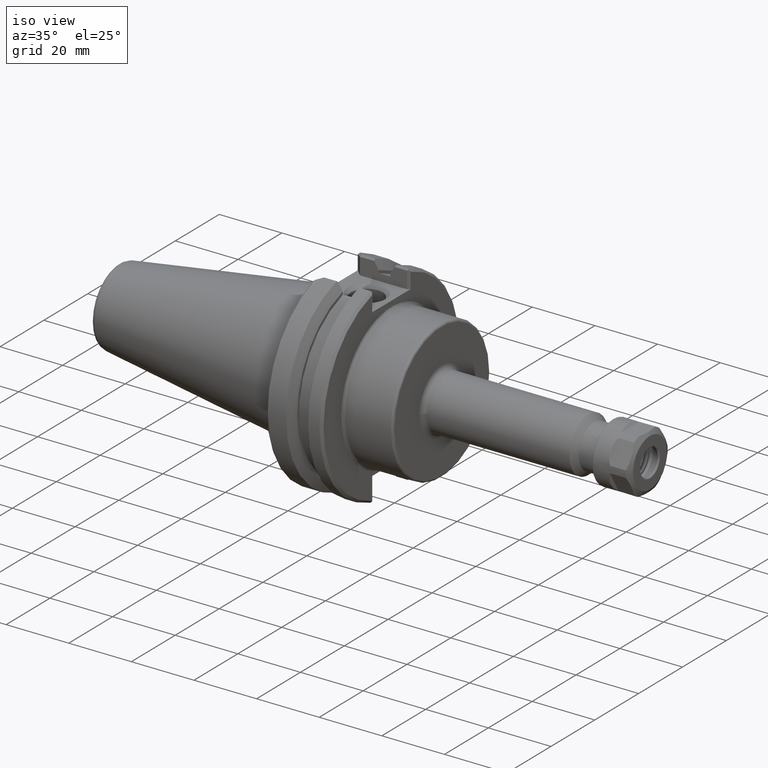
[diagram: clean part render]
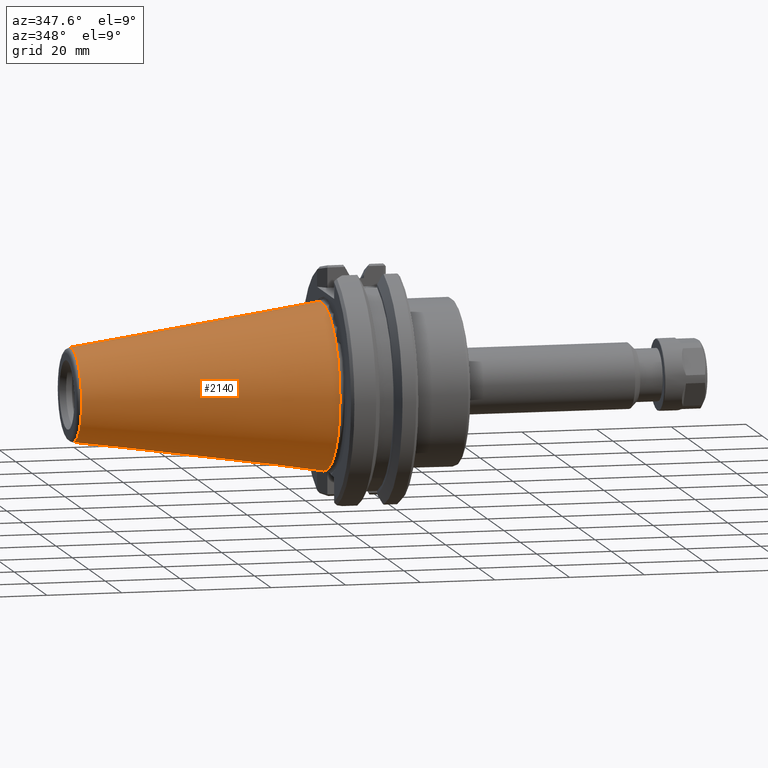
[diagram: tour spotlight — one face highlighted and labeled with its STEP entity id]
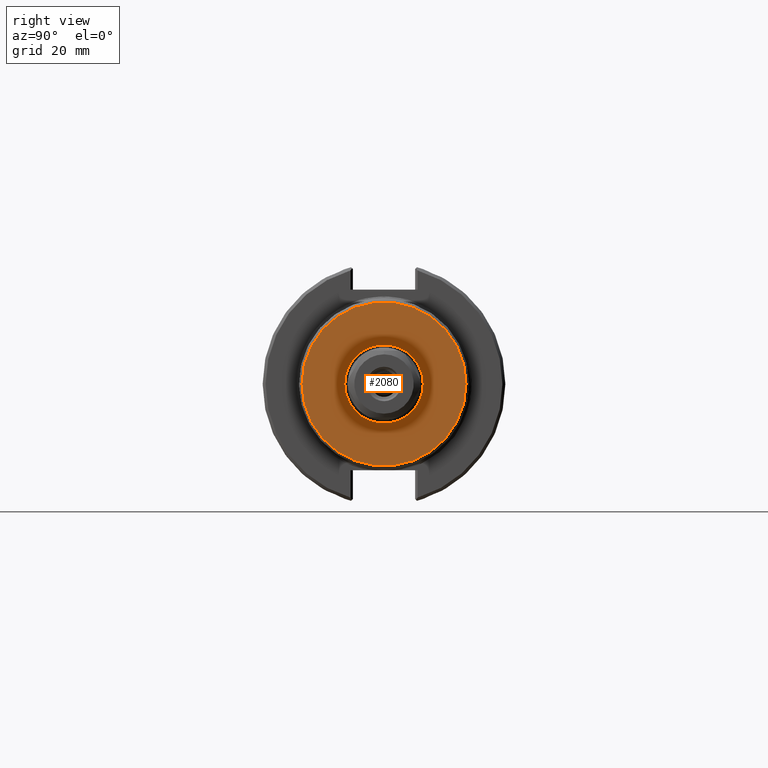
[diagram: tour spotlight — one face highlighted and labeled with its STEP entity id]
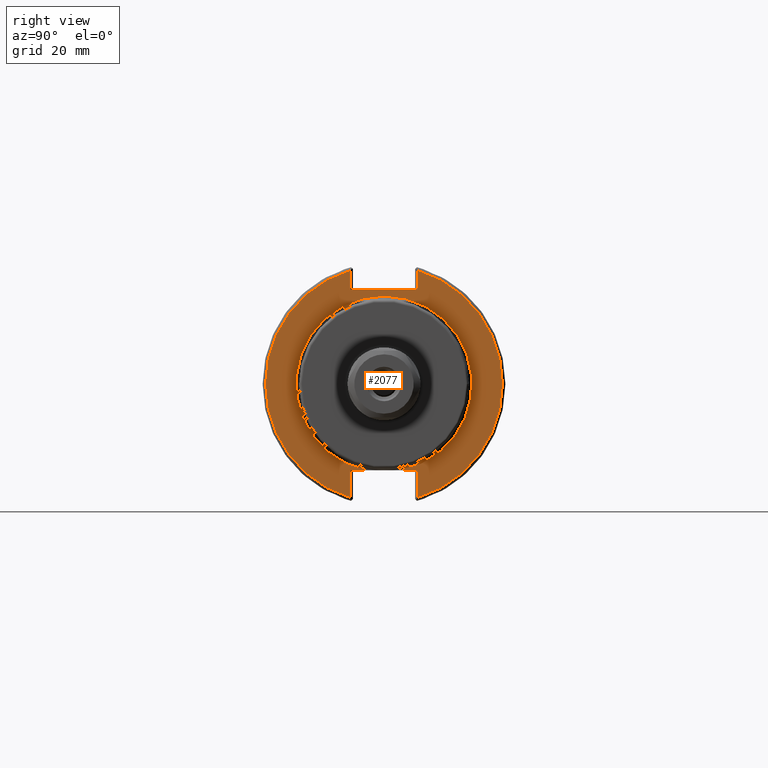
[diagram: tour spotlight — one face highlighted and labeled with its STEP entity id]
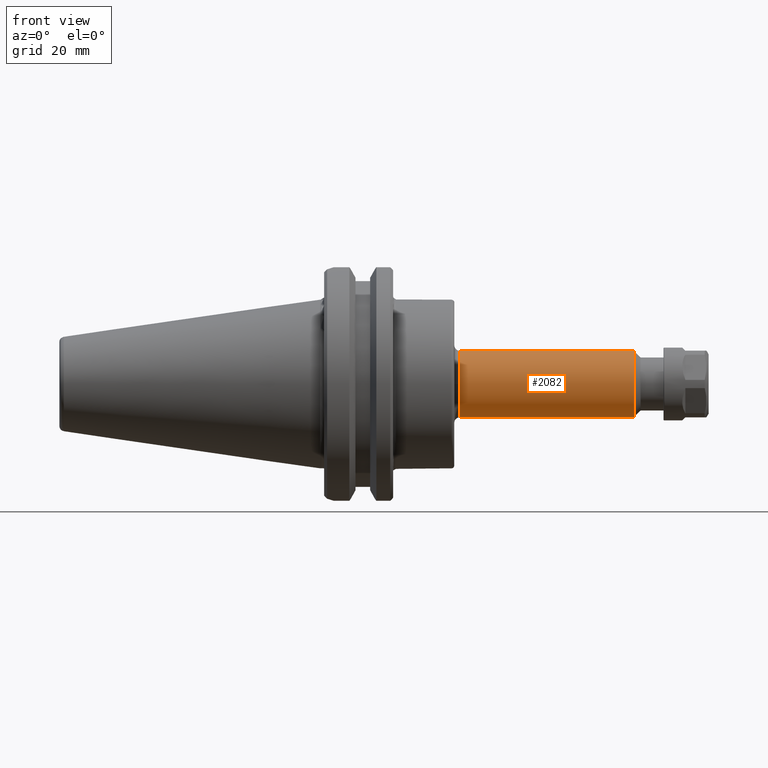
[diagram: tour spotlight — one face highlighted and labeled with its STEP entity id]
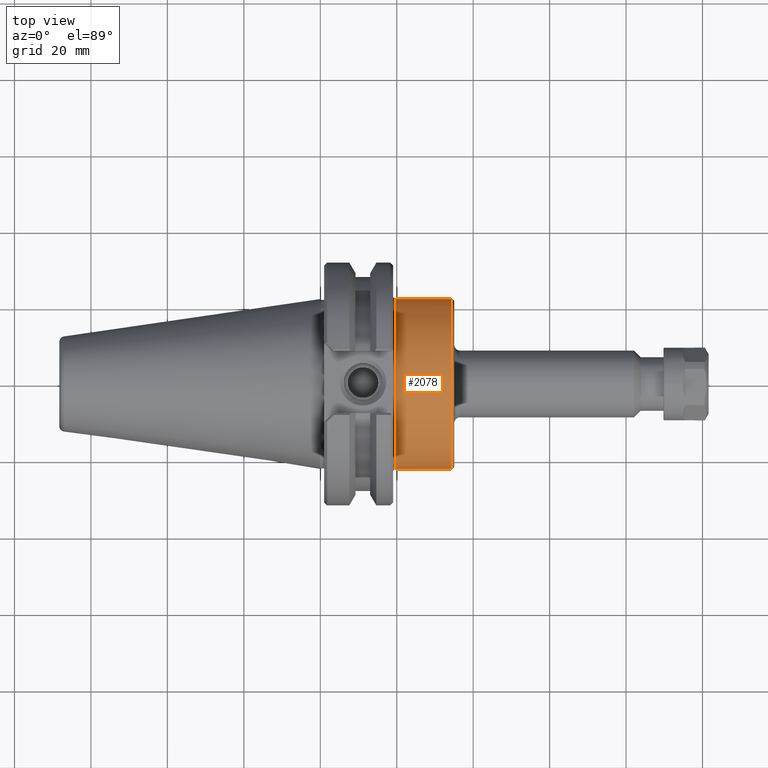
[diagram: tour spotlight — one face highlighted and labeled with its STEP entity id]
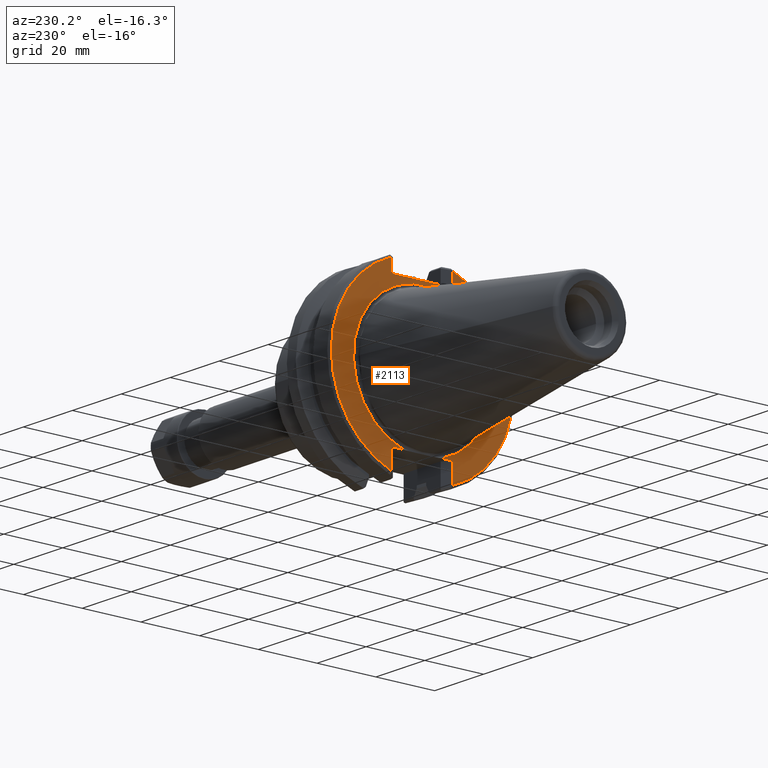
[diagram: tour spotlight — one face highlighted and labeled with its STEP entity id]
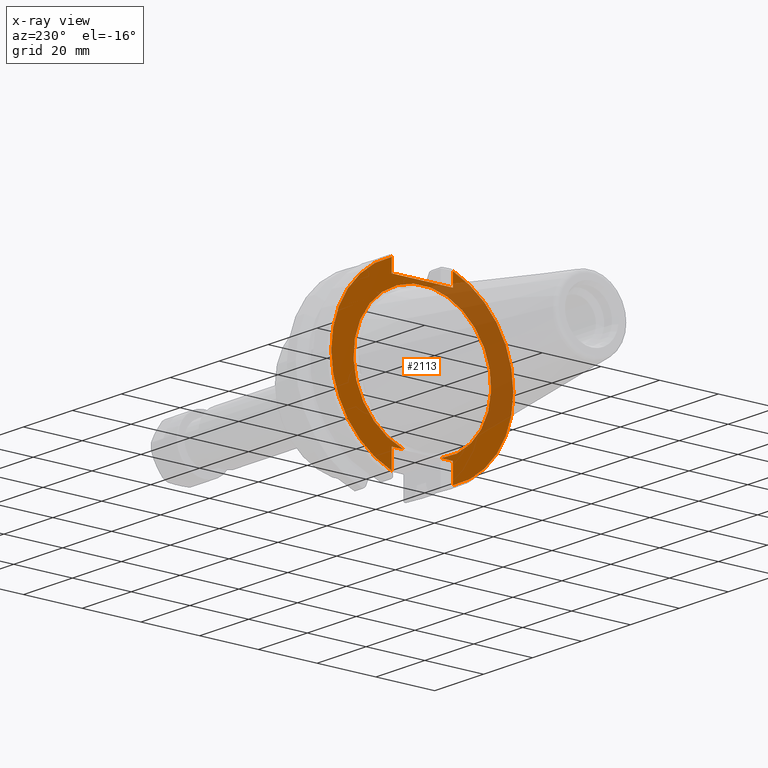
[diagram: x-ray of the same camera — body ghosted, this tour face saturated]
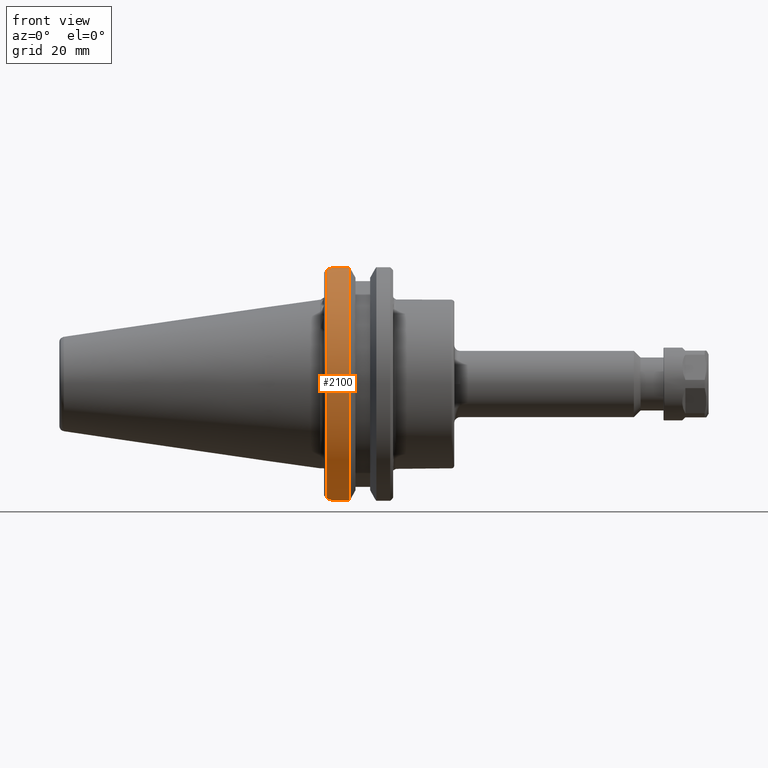
[diagram: tour spotlight — one face highlighted and labeled with its STEP entity id]
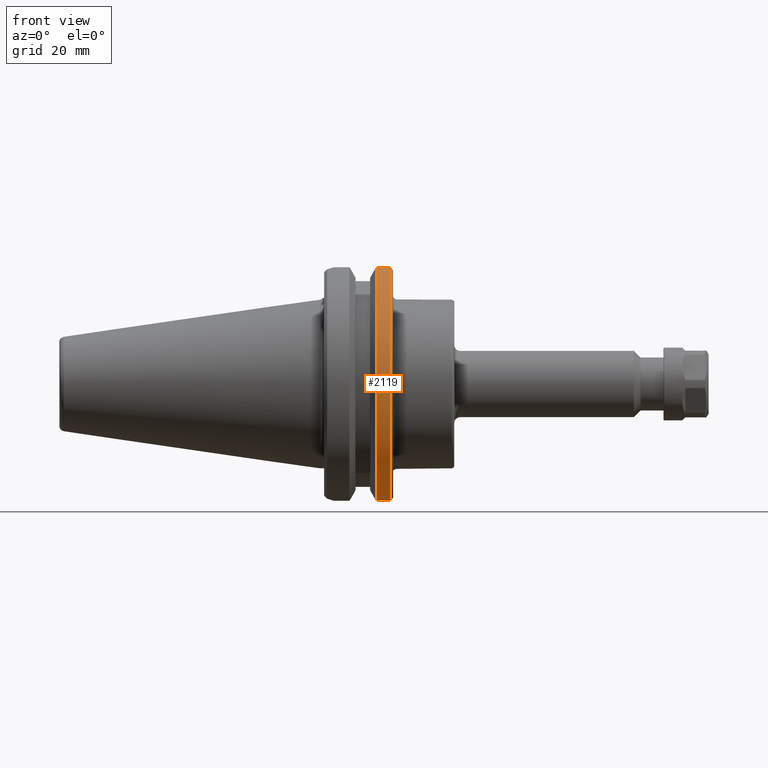
[diagram: tour spotlight — one face highlighted and labeled with its STEP entity id]
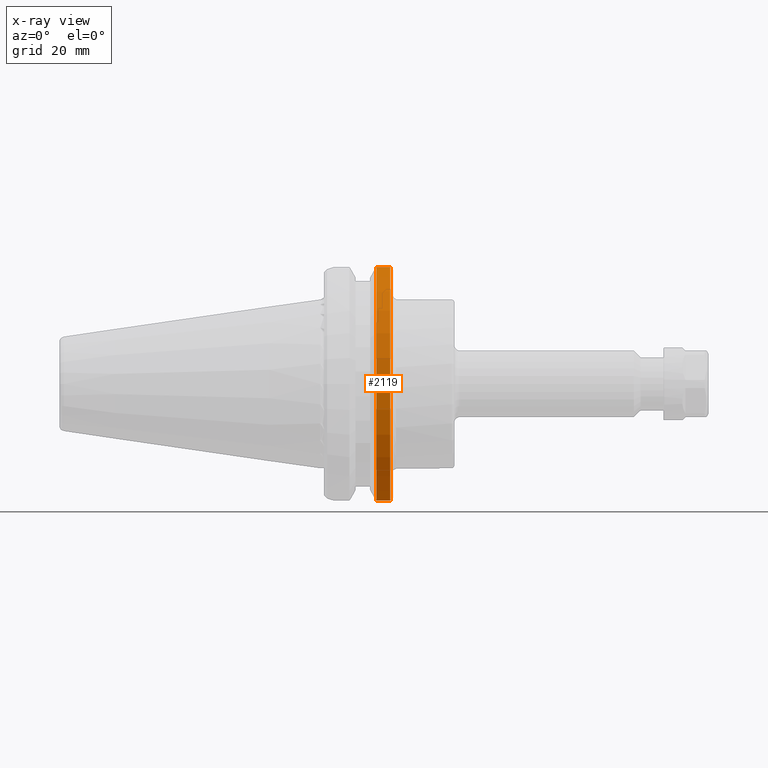
[diagram: x-ray of the same camera — body ghosted, this tour face saturated]
A machine part: a face-by-face anatomy tour. The part has 133 B-rep faces; the first image is the clean iso view, then the 8 largest visible faces are spotlighted one at a time (largest first), each with its STEP entity span.

Face 1 — auxiliary view, entity #2140. In plain terms, the highlighted conical surface has half-angle 8.297 deg.
Definition (entity closure, byte-faithful):
#107=CONICAL_SURFACE('',#2317,0.67903993059773,8.297);
#464=FACE_BOUND('',#718,.T.);
#557=FACE_OUTER_BOUND('',#717,.T.);
#717=EDGE_LOOP('',(#1705));
#718=EDGE_LOOP('',(#1706));
#852=CIRCLE('',#2304,0.875);
#858=CIRCLE('',#2315,0.48981834472846);
#1045=VERTEX_POINT('',#4218);
#1051=VERTEX_POINT('',#4235);
#1293=EDGE_CURVE('',#1045,#1045,#852,.T.);
#1299=EDGE_CURVE('',#1051,#1051,#858,.T.);
#1705=ORIENTED_EDGE('',*,*,#1293,.F.);
#1706=ORIENTED_EDGE('',*,*,#1299,.F.);
#2140=ADVANCED_FACE('',(#557,#464),#107,.T.);
#2304=AXIS2_PLACEMENT_3D('',#4219,#2698,#2699);
#2315=AXIS2_PLACEMENT_3D('',#4236,#2720,#2721);
#2317=AXIS2_PLACEMENT_3D('',#4238,#2724,#2725);
#2698=DIRECTION('center_axis',(1.,0.,0.));
#2699=DIRECTION('ref_axis',(-1.62451355720802E-13,1.,0.));
#2720=DIRECTION('center_axis',(-1.,-3.56945127670622E-15,7.13890255341328E-16));
#2721=DIRECTION('ref_axis',(3.56945127670622E-15,-1.,2.83346419976399E-30));
#2724=DIRECTION('center_axis',(1.,0.,0.));
#2725=DIRECTION('ref_axis',(-1.62451355720802E-13,1.,0.));
#4218=CARTESIAN_POINT('',(0.,0.875,0.));
#4219=CARTESIAN_POINT('Origin',(0.,0.,0.));
#4235=CARTESIAN_POINT('',(-2.64129243702512,0.489818344728471,-1.19970893607074E-16));
#4236=CARTESIAN_POINT('Origin',(-2.64129243702511,1.13644876536433E-14,
-5.99854468035363E-17));
#4238=CARTESIAN_POINT('Origin',(-1.34375,0.,0.));

Face 2 — right view, entity #2080. In plain terms, the highlighted planar face has unit normal (1, 0, 0).
Definition (entity closure, byte-faithful):
#376=PLANE('',#2223);
#440=FACE_BOUND('',#634,.T.);
#497=FACE_OUTER_BOUND('',#633,.T.);
#633=EDGE_LOOP('',(#1439));
#634=EDGE_LOOP('',(#1440));
#820=CIRCLE('',#2222,0.845);
#821=CIRCLE('',#2224,0.404);
#943=VERTEX_POINT('',#3074);
#944=VERTEX_POINT('',#3077);
#1151=EDGE_CURVE('',#943,#943,#820,.T.);
#1152=EDGE_CURVE('',#944,#944,#821,.T.);
#1439=ORIENTED_EDGE('',*,*,#1151,.F.);
#1440=ORIENTED_EDGE('',*,*,#1152,.F.);
#2080=ADVANCED_FACE('',(#497,#440),#376,.T.);
#2222=AXIS2_PLACEMENT_3D('',#3075,#2475,#2476);
#2223=AXIS2_PLACEMENT_3D('',#3076,#2477,#2478);
#2224=AXIS2_PLACEMENT_3D('',#3078,#2479,#2480);
#2475=DIRECTION('center_axis',(-1.,0.,0.));
#2476=DIRECTION('ref_axis',(0.,-1.,1.22464679914735E-16));
#2477=DIRECTION('center_axis',(1.,0.,0.));
#2478=DIRECTION('ref_axis',(0.,0.,-1.));
#2479=DIRECTION('center_axis',(1.,0.,0.));
#2480=DIRECTION('ref_axis',(0.,1.,0.));
#3074=CARTESIAN_POINT('',(1.38,0.845,-2.06965309055903E-16));
#3075=CARTESIAN_POINT('Origin',(1.38,0.,0.));
#3076=CARTESIAN_POINT('Origin',(1.38,0.4375,0.));
#3077=CARTESIAN_POINT('',(1.38,-0.404,-4.94757306855531E-17));
#3078=CARTESIAN_POINT('Origin',(1.38,0.,0.));

Face 3 — right view, entity #2077. In plain terms, the highlighted planar face has unit normal (1, 0, 0).
Definition (entity closure, byte-faithful):
#147=LINE('',#3054,#261);
#148=LINE('',#3056,#262);
#149=LINE('',#3060,#263);
#150=LINE('',#3062,#264);
#151=LINE('',#3064,#265);
#152=LINE('',#3068,#266);
#153=LINE('',#3069,#267);
#261=VECTOR('',#2458,0.170411913350653);
#262=VECTOR('',#2459,0.282202973846744);
#263=VECTOR('',#2462,0.198202973846762);
#264=VECTOR('',#2463,0.69);
#265=VECTOR('',#2464,0.198202973846928);
#266=VECTOR('',#2467,0.282202973846946);
#267=VECTOR('',#2468,0.170411913349964);
#375=PLANE('',#2216);
#494=FACE_OUTER_BOUND('',#628,.T.);
#628=EDGE_LOOP('',(#1425,#1426,#1427,#1428,#1429,#1430,#1431,#1432,#1433,
#1434));
#815=CIRCLE('',#2214,0.905);
#817=CIRCLE('',#2217,1.22);
#818=CIRCLE('',#2218,1.22);
#931=VERTEX_POINT('',#3036);
#932=VERTEX_POINT('',#3037);
#934=VERTEX_POINT('',#3053);
#935=VERTEX_POINT('',#3055);
#936=VERTEX_POINT('',#3057);
#937=VERTEX_POINT('',#3059);
#938=VERTEX_POINT('',#3061);
#939=VERTEX_POINT('',#3063);
#940=VERTEX_POINT('',#3065);
#941=VERTEX_POINT('',#3067);
#1139=EDGE_CURVE('',#931,#932,#815,.T.);
#1141=EDGE_CURVE('',#934,#931,#147,.T.);
#1142=EDGE_CURVE('',#935,#934,#148,.T.);
#1143=EDGE_CURVE('',#936,#935,#817,.T.);
#1144=EDGE_CURVE('',#937,#936,#149,.T.);
#1145=EDGE_CURVE('',#938,#937,#150,.T.);
#1146=EDGE_CURVE('',#939,#938,#151,.T.);
#1147=EDGE_CURVE('',#940,#939,#818,.T.);
#1148=EDGE_CURVE('',#941,#940,#152,.T.);
#1149=EDGE_CURVE('',#932,#941,#153,.T.);
#1425=ORIENTED_EDGE('',*,*,#1139,.F.);
#1426=ORIENTED_EDGE('',*,*,#1141,.F.);
#1427=ORIENTED_EDGE('',*,*,#1142,.F.);
#1428=ORIENTED_EDGE('',*,*,#1143,.F.);
#1429=ORIENTED_EDGE('',*,*,#1144,.F.);
#1430=ORIENTED_EDGE('',*,*,#1145,.F.);
#1431=ORIENTED_EDGE('',*,*,#1146,.F.);
#1432=ORIENTED_EDGE('',*,*,#1147,.F.);
#1433=ORIENTED_EDGE('',*,*,#1148,.F.);
#1434=ORIENTED_EDGE('',*,*,#1149,.F.);
#2077=ADVANCED_FACE('',(#494),#375,.T.);
#2214=AXIS2_PLACEMENT_3D('',#3049,#2452,#2453);
#2216=AXIS2_PLACEMENT_3D('',#3052,#2456,#2457);
#2217=AXIS2_PLACEMENT_3D('',#3058,#2460,#2461);
#2218=AXIS2_PLACEMENT_3D('',#3066,#2465,#2466);
#2452=DIRECTION('center_axis',(1.,0.,0.));
#2453=DIRECTION('ref_axis',(0.,-1.,1.22464679914735E-16));
#2456=DIRECTION('center_axis',(1.,0.,0.));
#2457=DIRECTION('ref_axis',(0.,0.,-1.));
#2458=DIRECTION('',(0.,-1.,0.));
#2459=DIRECTION('',(0.,0.,1.));
#2460=DIRECTION('center_axis',(-1.,0.,0.));
#2461=DIRECTION('ref_axis',(0.,1.,0.));
#2462=DIRECTION('',(0.,0.,1.));
#2463=DIRECTION('',(0.,1.,2.4701457228374E-31));
#2464=DIRECTION('',(0.,0.,-1.));
#2465=DIRECTION('center_axis',(-1.,0.,0.));
#2466=DIRECTION('ref_axis',(0.,-1.,0.));
#2467=DIRECTION('',(0.,0.,-1.));
#2468=DIRECTION('',(0.,-1.,0.));
#3036=CARTESIAN_POINT('',(0.75,0.174588086649691,-0.888));
#3037=CARTESIAN_POINT('',(0.75,-0.174588086649691,-0.888));
#3049=CARTESIAN_POINT('Origin',(0.75,0.,0.));
#3052=CARTESIAN_POINT('Origin',(0.75,1.0625,0.));
#3053=CARTESIAN_POINT('',(0.75,0.345000000000344,-0.888));
#3054=CARTESIAN_POINT('',(0.75,0.531250000000168,-0.888));
#3055=CARTESIAN_POINT('',(0.75,0.345000000000344,-1.17020297384674));
#3056=CARTESIAN_POINT('',(0.75,0.345000000000344,-0.444));
#3057=CARTESIAN_POINT('',(0.75,0.345000000000281,1.17020297384676));
#3058=CARTESIAN_POINT('Origin',(0.75,0.,0.));
#3059=CARTESIAN_POINT('',(0.75,0.345000000000281,0.972));
#3060=CARTESIAN_POINT('',(0.75,0.345000000000281,0.486));
#3061=CARTESIAN_POINT('',(0.75,-0.344999999999719,0.972));
#3062=CARTESIAN_POINT('',(0.75,0.53125000000014,0.972));
#3063=CARTESIAN_POINT('',(0.75,-0.344999999999719,1.17020297384693));
#3064=CARTESIAN_POINT('',(0.75,-0.344999999999719,0.486));
#3065=CARTESIAN_POINT('',(0.75,-0.344999999999656,-1.17020297384695));
#3066=CARTESIAN_POINT('Origin',(0.75,0.,0.));
#3067=CARTESIAN_POINT('',(0.75,-0.344999999999656,-0.888));
#3068=CARTESIAN_POINT('',(0.75,-0.344999999999656,-0.444));
#3069=CARTESIAN_POINT('',(0.75,0.531250000000168,-0.888));

Face 4 — front view, entity #2082. In plain terms, the highlighted cylindrical surface (bore or boss wall) has radius 8.7376 mm, axis along (1, 0, 0).
Definition (entity closure, byte-faithful):
#126=CYLINDRICAL_SURFACE('',#2227,0.344);
#442=FACE_BOUND('',#638,.T.);
#499=FACE_OUTER_BOUND('',#637,.T.);
#637=EDGE_LOOP('',(#1443));
#638=EDGE_LOOP('',(#1444));
#822=CIRCLE('',#2226,0.344);
#823=CIRCLE('',#2228,0.344);
#945=VERTEX_POINT('',#3080);
#946=VERTEX_POINT('',#3083);
#1153=EDGE_CURVE('',#945,#945,#822,.T.);
#1154=EDGE_CURVE('',#946,#946,#823,.T.);
#1443=ORIENTED_EDGE('',*,*,#1154,.F.);
#1444=ORIENTED_EDGE('',*,*,#1153,.F.);
#2082=ADVANCED_FACE('',(#499,#442),#126,.T.);
#2226=AXIS2_PLACEMENT_3D('',#3081,#2483,#2484);
#2227=AXIS2_PLACEMENT_3D('',#3082,#2485,#2486);
#2228=AXIS2_PLACEMENT_3D('',#3084,#2487,#2488);
#2483=DIRECTION('center_axis',(-1.,0.,0.));
#2484=DIRECTION('ref_axis',(0.,1.,0.));
#2485=DIRECTION('center_axis',(1.,0.,0.));
#2486=DIRECTION('ref_axis',(0.,1.,0.));
#2487=DIRECTION('center_axis',(1.,0.,0.));
#2488=DIRECTION('ref_axis',(0.,1.,0.));
#3080=CARTESIAN_POINT('',(1.44,-0.344,4.21278498906689E-17));
#3081=CARTESIAN_POINT('Origin',(1.44,0.,0.));
#3082=CARTESIAN_POINT('Origin',(2.14629527559055,0.,0.));
#3083=CARTESIAN_POINT('',(3.2305905511811,0.344,0.));
#3084=CARTESIAN_POINT('Origin',(3.2305905511811,0.,0.));

Face 5 — top view, entity #2078. In plain terms, the highlighted cylindrical surface (bore or boss wall) has radius 22.225 mm, axis along (1, 0, 0).
Definition (entity closure, byte-faithful):
#125=CYLINDRICAL_SURFACE('',#2219,0.875);
#438=FACE_BOUND('',#630,.T.);
#495=FACE_OUTER_BOUND('',#629,.T.);
#629=EDGE_LOOP('',(#1435));
#630=EDGE_LOOP('',(#1436));
#816=CIRCLE('',#2215,0.875);
#819=CIRCLE('',#2220,0.875);
#933=VERTEX_POINT('',#3050);
#942=VERTEX_POINT('',#3071);
#1140=EDGE_CURVE('',#933,#933,#816,.T.);
#1150=EDGE_CURVE('',#942,#942,#819,.T.);
#1435=ORIENTED_EDGE('',*,*,#1150,.F.);
#1436=ORIENTED_EDGE('',*,*,#1140,.F.);
#2078=ADVANCED_FACE('',(#495,#438),#125,.T.);
#2215=AXIS2_PLACEMENT_3D('',#3051,#2454,#2455);
#2219=AXIS2_PLACEMENT_3D('',#3070,#2469,#2470);
#2220=AXIS2_PLACEMENT_3D('',#3072,#2471,#2472);
#2454=DIRECTION('center_axis',(-1.,0.,0.));
#2455=DIRECTION('ref_axis',(0.,-1.,1.22464679914735E-16));
#2469=DIRECTION('center_axis',(1.,0.,0.));
#2470=DIRECTION('ref_axis',(-1.62451355720802E-13,1.,0.));
#2471=DIRECTION('center_axis',(1.,0.,0.));
#2472=DIRECTION('ref_axis',(0.,-1.,1.22464679914735E-16));
#3050=CARTESIAN_POINT('',(0.78,0.875,-2.14313189850787E-16));
#3051=CARTESIAN_POINT('Origin',(0.78,0.,0.));
#3070=CARTESIAN_POINT('Origin',(1.065,0.,0.));
#3071=CARTESIAN_POINT('',(1.35,0.875,0.));
#3072=CARTESIAN_POINT('Origin',(1.35,0.,0.));

Face 6 — auxiliary view, entity #2113. An x-ray twin of the same camera follows (body ghosted, this face saturated) — the face is partly hidden behind the body. In plain terms, the highlighted planar face has unit normal (-1, 0, 0).
Definition (entity closure, byte-faithful):
#157=LINE('',#3588,#271);
#164=LINE('',#3812,#278);
#165=LINE('',#3977,#279);
#170=LINE('',#3993,#284);
#175=LINE('',#4002,#289);
#189=LINE('',#4055,#303);
#190=LINE('',#4058,#304);
#271=VECTOR('',#2546,0.261043080132413);
#278=VECTOR('',#2565,0.177043080132434);
#279=VECTOR('',#2568,0.177043080132233);
#284=VECTOR('',#2585,0.82);
#289=VECTOR('',#2592,0.261043080132253);
#303=VECTOR('',#2616,0.158671957902933);
#304=VECTOR('',#2619,0.158671957902484);
#388=PLANE('',#2274);
#530=FACE_OUTER_BOUND('',#682,.T.);
#682=EDGE_LOOP('',(#1576,#1577,#1578,#1579,#1580,#1581,#1582,#1583,#1584,
#1585));
#836=CIRCLE('',#2254,1.22);
#838=CIRCLE('',#2258,1.22);
#843=CIRCLE('',#2275,0.922881240867132);
#967=VERTEX_POINT('',#3363);
#968=VERTEX_POINT('',#3367);
#975=VERTEX_POINT('',#3583);
#976=VERTEX_POINT('',#3587);
#980=VERTEX_POINT('',#3603);
#987=VERTEX_POINT('',#3810);
#990=VERTEX_POINT('',#3976);
#998=VERTEX_POINT('',#4000);
#1014=VERTEX_POINT('',#4054);
#1015=VERTEX_POINT('',#4056);
#1178=EDGE_CURVE('',#967,#968,#836,.T.);
#1187=EDGE_CURVE('',#975,#976,#157,.T.);
#1193=EDGE_CURVE('',#980,#975,#838,.T.);
#1203=EDGE_CURVE('',#987,#980,#164,.T.);
#1207=EDGE_CURVE('',#968,#990,#165,.T.);
#1215=EDGE_CURVE('',#987,#990,#170,.T.);
#1220=EDGE_CURVE('',#998,#967,#175,.T.);
#1240=EDGE_CURVE('',#998,#1014,#189,.T.);
#1241=EDGE_CURVE('',#1014,#1015,#843,.T.);
#1242=EDGE_CURVE('',#1015,#976,#190,.T.);
#1576=ORIENTED_EDGE('',*,*,#1240,.T.);
#1577=ORIENTED_EDGE('',*,*,#1241,.T.);
#1578=ORIENTED_EDGE('',*,*,#1242,.T.);
#1579=ORIENTED_EDGE('',*,*,#1187,.F.);
#1580=ORIENTED_EDGE('',*,*,#1193,.F.);
#1581=ORIENTED_EDGE('',*,*,#1203,.F.);
#1582=ORIENTED_EDGE('',*,*,#1215,.T.);
#1583=ORIENTED_EDGE('',*,*,#1207,.F.);
#1584=ORIENTED_EDGE('',*,*,#1178,.F.);
#1585=ORIENTED_EDGE('',*,*,#1220,.F.);
#2113=ADVANCED_FACE('',(#530),#388,.T.);
#2254=AXIS2_PLACEMENT_3D('',#3368,#2542,#2543);
#2258=AXIS2_PLACEMENT_3D('',#3607,#2553,#2554);
#2274=AXIS2_PLACEMENT_3D('',#4053,#2614,#2615);
#2275=AXIS2_PLACEMENT_3D('',#4057,#2617,#2618);
#2542=DIRECTION('center_axis',(1.,0.,0.));
#2543=DIRECTION('ref_axis',(0.,1.,0.));
#2546=DIRECTION('',(0.,0.,1.));
#2553=DIRECTION('center_axis',(1.,0.,0.));
#2554=DIRECTION('ref_axis',(0.,-1.,0.));
#2565=DIRECTION('',(0.,0.,1.));
#2568=DIRECTION('',(0.,0.,-1.));
#2585=DIRECTION('',(0.,1.,2.4701457228374E-31));
#2592=DIRECTION('',(0.,0.,-1.));
#2614=DIRECTION('center_axis',(-1.,0.,0.));
#2615=DIRECTION('ref_axis',(0.,0.,1.));
#2616=DIRECTION('',(0.,-1.,0.));
#2617=DIRECTION('center_axis',(1.,0.,0.));
#2618=DIRECTION('ref_axis',(0.,1.,0.));
#2619=DIRECTION('',(0.,-1.,0.));
#3363=CARTESIAN_POINT('',(0.0397999999999998,0.410000000000225,-1.14904308013225));
#3367=CARTESIAN_POINT('',(0.0397999999999998,0.410000000000281,1.14904308013223));
#3368=CARTESIAN_POINT('Origin',(0.0397999999999998,0.,0.));
#3583=CARTESIAN_POINT('',(0.0397999999999998,-0.409999999999775,-1.14904308013241));
#3587=CARTESIAN_POINT('',(0.0397999999999998,-0.409999999999775,-0.888));
#3588=CARTESIAN_POINT('',(0.0397999999999998,-0.409999999999775,-0.444));
#3603=CARTESIAN_POINT('',(0.0397999999999998,-0.409999999999719,1.14904308013243));
#3607=CARTESIAN_POINT('Origin',(0.0397999999999998,0.,0.));
#3810=CARTESIAN_POINT('',(0.0397999999999998,-0.409999999999719,0.972));
#3812=CARTESIAN_POINT('',(0.0397999999999998,-0.409999999999719,0.486));
#3976=CARTESIAN_POINT('',(0.0397999999999998,0.410000000000281,0.972));
#3977=CARTESIAN_POINT('',(0.0397999999999998,0.410000000000281,0.486));
#3993=CARTESIAN_POINT('',(0.0397999999999998,0.53125000000014,0.972));
#4000=CARTESIAN_POINT('',(0.0397999999999998,0.410000000000225,-0.888));
#4002=CARTESIAN_POINT('',(0.0397999999999998,0.410000000000225,-0.444));
#4053=CARTESIAN_POINT('Origin',(0.0397999999999998,1.0625,0.));
#4054=CARTESIAN_POINT('',(0.0397999999999997,0.251328042097291,-0.888));
#4055=CARTESIAN_POINT('',(0.0397999999999998,0.531250000000168,-0.888));
#4056=CARTESIAN_POINT('',(0.0397999999999997,-0.251328042097291,-0.888));
#4057=CARTESIAN_POINT('Origin',(0.0397999999999998,0.,0.));
#4058=CARTESIAN_POINT('',(0.0397999999999998,0.531250000000168,-0.888));

Face 7 — front view, entity #2100. In plain terms, the highlighted cylindrical surface (partial cylindrical patch) has radius 31.75 mm, axis along (1, 0, 0).
Definition (entity closure, byte-faithful):
#131=CYLINDRICAL_SURFACE('',#2259,1.25);
#160=LINE('',#3610,#274);
#161=LINE('',#3614,#275);
#274=VECTOR('',#2557,0.159597161674143);
#275=VECTOR('',#2560,0.159597161674194);
#517=FACE_OUTER_BOUND('',#666,.T.);
#666=EDGE_LOOP('',(#1502,#1503,#1504,#1505,#1506,#1507));
#837=CIRCLE('',#2257,1.25);
#839=CIRCLE('',#2260,1.25);
#921=B_SPLINE_CURVE_WITH_KNOTS('',3,(#3552,#3553,#3554,#3555,#3556,#3557,
#3558,#3559,#3560,#3561,#3562,#3563,#3564,#3565,#3566,#3567,#3568,#3569,
#3570,#3571,#3572,#3573,#3574,#3575,#3576,#3577,#3578,#3579,#3580,#3581),
 .UNSPECIFIED.,.F.,.F.,(4,2,2,2,2,2,2,2,2,2,2,2,2,2,4),(-0.0522227980911079,
0.,0.0122537437452531,0.024502935585128,0.0367475313027496,0.0489874867959797,
0.061222758078536,0.073453301281127,0.0856790726525604,0.0979000285608856,
0.110116125494511,0.122327320063341,0.134533568999907,0.146734829160502,
0.201199831019126),.UNSPECIFIED.);
#923=B_SPLINE_CURVE_WITH_KNOTS('',3,(#3615,#3616,#3617,#3618,#3619,#3620,
#3621,#3622,#3623,#3624,#3625,#3626,#3627,#3628,#3629,#3630,#3631,#3632,
#3633,#3634,#3635,#3636,#3637,#3638,#3639,#3640,#3641,#3642,#3643,#3644),
 .UNSPECIFIED.,.F.,.F.,(4,2,2,2,2,2,2,2,2,2,2,2,2,2,4),(-0.0544650018586125,
0.,0.0122012601605769,0.0244075090971253,0.036618703665939,0.0488348005995456,
0.0610557565078532,0.07328152787927,0.0855120710818425,0.0977473423643818,
0.109987297857596,0.122231893575198,0.134481085415057,0.146734829160291,
0.198957627251415),.UNSPECIFIED.);
#970=VERTEX_POINT('',#3500);
#974=VERTEX_POINT('',#3545);
#978=VERTEX_POINT('',#3593);
#981=VERTEX_POINT('',#3609);
#982=VERTEX_POINT('',#3611);
#983=VERTEX_POINT('',#3613);
#1185=EDGE_CURVE('',#974,#970,#921,.T.);
#1190=EDGE_CURVE('',#970,#978,#837,.T.);
#1194=EDGE_CURVE('',#981,#974,#160,.T.);
#1195=EDGE_CURVE('',#981,#982,#839,.T.);
#1196=EDGE_CURVE('',#983,#982,#161,.T.);
#1197=EDGE_CURVE('',#978,#983,#923,.T.);
#1502=ORIENTED_EDGE('',*,*,#1185,.F.);
#1503=ORIENTED_EDGE('',*,*,#1194,.F.);
#1504=ORIENTED_EDGE('',*,*,#1195,.T.);
#1505=ORIENTED_EDGE('',*,*,#1196,.F.);
#1506=ORIENTED_EDGE('',*,*,#1197,.F.);
#1507=ORIENTED_EDGE('',*,*,#1190,.F.);
#2100=ADVANCED_FACE('',(#517),#131,.T.);
#2257=AXIS2_PLACEMENT_3D('',#3594,#2551,#2552);
#2259=AXIS2_PLACEMENT_3D('',#3608,#2555,#2556);
#2260=AXIS2_PLACEMENT_3D('',#3612,#2558,#2559);
#2551=DIRECTION('center_axis',(-1.,0.,0.));
#2552=DIRECTION('ref_axis',(1.62451355720802E-13,-1.,0.));
#2555=DIRECTION('center_axis',(1.,0.,0.));
#2556=DIRECTION('ref_axis',(-1.62451355720802E-13,1.,0.));
#2557=DIRECTION('',(-1.,0.,0.));
#2558=DIRECTION('center_axis',(-1.,0.,0.));
#2559=DIRECTION('ref_axis',(-1.62451355720802E-13,1.,0.));
#2560=DIRECTION('',(1.,0.,0.));
#3500=CARTESIAN_POINT('',(0.0698000001421842,-0.408458681238645,-1.18138118561317));
#3545=CARTESIAN_POINT('',(0.139928966099218,-0.339628138324565,-1.2029766114344));
#3552=CARTESIAN_POINT('Ctrl Pts',(0.139928966090103,-0.339628138337144,
-1.20297661152056));
#3553=CARTESIAN_POINT('Ctrl Pts',(0.135092466600187,-0.344382624246985,
-1.20163431041355));
#3554=CARTESIAN_POINT('Ctrl Pts',(0.13025979112037,-0.349131802536587,-1.20026307500953));
#3555=CARTESIAN_POINT('Ctrl Pts',(0.12429790156704,-0.354988776584822,-1.19853423635086));
#3556=CARTESIAN_POINT('Ctrl Pts',(0.123165058288499,-0.356101599266152,
-1.19820407233199));
#3557=CARTESIAN_POINT('Ctrl Pts',(0.120900220392618,-0.358326240593862,
-1.19754066831512));
#3558=CARTESIAN_POINT('Ctrl Pts',(0.119768224263555,-0.359438060835858,
-1.19720742906323));
#3559=CARTESIAN_POINT('Ctrl Pts',(0.117505087520742,-0.36166069075308,-1.1965378771845));
#3560=CARTESIAN_POINT('Ctrl Pts',(0.116373947283123,-0.362771500103949,
-1.19620156592129));
#3561=CARTESIAN_POINT('Ctrl Pts',(0.114112531235474,-0.364992099616482,
-1.19552587332897));
#3562=CARTESIAN_POINT('Ctrl Pts',(0.11298225515231,-0.366101890114686,-1.19518649317789));
#3563=CARTESIAN_POINT('Ctrl Pts',(0.110722576124309,-0.368320443507243,
-1.19450466607977));
#3564=CARTESIAN_POINT('Ctrl Pts',(0.109593173043197,-0.369429206599435,
-1.19416222036711));
#3565=CARTESIAN_POINT('Ctrl Pts',(0.107335248591373,-0.371645696909308,
-1.19347426539971));
#3566=CARTESIAN_POINT('Ctrl Pts',(0.106206727040039,-0.372753424370409,
-1.19312875737799));
#3567=CARTESIAN_POINT('Ctrl Pts',(0.10395057426239,-0.37496783510702,-1.19243468108303));
#3568=CARTESIAN_POINT('Ctrl Pts',(0.102822942864953,-0.376074518616768,
-1.1920861140587));
#3569=CARTESIAN_POINT('Ctrl Pts',(0.100568579027038,-0.378286833124849,
-1.19138592307926));
#3570=CARTESIAN_POINT('Ctrl Pts',(0.0994418463987543,-0.379392464374863,
-1.19103430038062));
#3571=CARTESIAN_POINT('Ctrl Pts',(0.0971892885599236,-0.38160266621453,
-1.19032800134196));
#3572=CARTESIAN_POINT('Ctrl Pts',(0.0960634631991265,-0.382707237018144,
-1.18997332628317));
#3573=CARTESIAN_POINT('Ctrl Pts',(0.093812728843037,-0.384915309323739,
-1.1892609259968));
#3574=CARTESIAN_POINT('Ctrl Pts',(0.0926878195529379,-0.386018811187149,
-1.18890320201783));
#3575=CARTESIAN_POINT('Ctrl Pts',(0.0904389248872701,-0.388224738395965,
-1.18818470692276));
#3576=CARTESIAN_POINT('Ctrl Pts',(0.0893149398577045,-0.389327163451712,
-1.18782393728978));
#3577=CARTESIAN_POINT('Ctrl Pts',(0.0870679042763588,-0.391530926767374,
-1.18709935491009));
#3578=CARTESIAN_POINT('Ctrl Pts',(0.0859448521625858,-0.392632266677618,
-1.18673554315703));
#3579=CARTESIAN_POINT('Ctrl Pts',(0.0798099292078542,-0.398648117029378,
-1.18473899804746));
#3580=CARTESIAN_POINT('Ctrl Pts',(0.0748025734051189,-0.403556589459569,
-1.18307607072522));
#3581=CARTESIAN_POINT('Ctrl Pts',(0.069799999791613,-0.40845868173122,-1.18138118811451));
#3593=CARTESIAN_POINT('',(0.0698000001421838,-0.40845868123859,1.18138118561319));
#3594=CARTESIAN_POINT('Origin',(0.0698,0.,0.));
#3608=CARTESIAN_POINT('Origin',(0.3949,0.,0.));
#3609=CARTESIAN_POINT('',(0.299526127773361,-0.339628138321223,-1.20297661143534));
#3610=CARTESIAN_POINT('',(0.3949,-0.339628138321223,-1.20297661143534));
#3611=CARTESIAN_POINT('',(0.299526127773361,-0.339628138321233,1.20297661143534));
#3612=CARTESIAN_POINT('Origin',(0.299526127773361,0.,0.));
#3613=CARTESIAN_POINT('',(0.139928966099167,-0.339628138324575,1.2029766114344));
#3614=CARTESIAN_POINT('',(0.3949,-0.339628138321233,1.20297661143534));
#3615=CARTESIAN_POINT('Ctrl Pts',(0.0697999997916123,-0.408458681731163,
1.18138118811452));
#3616=CARTESIAN_POINT('Ctrl Pts',(0.0748025734051171,-0.403556589459512,
1.18307607072523));
#3617=CARTESIAN_POINT('Ctrl Pts',(0.0798099292078514,-0.398648117029321,
1.18473899804747));
#3618=CARTESIAN_POINT('Ctrl Pts',(0.0859448521625807,-0.392632266677565,
1.18673554315703));
#3619=CARTESIAN_POINT('Ctrl Pts',(0.0870679042763522,-0.391530926767322,
1.18709935491009));
#3620=CARTESIAN_POINT('Ctrl Pts',(0.0893149398576948,-0.389327163451663,
1.18782393728977));
#3621=CARTESIAN_POINT('Ctrl Pts',(0.0904389248872589,-0.388224738395918,
1.18818470692275));
#3622=CARTESIAN_POINT('Ctrl Pts',(0.0926878195529237,-0.386018811187105,
1.18890320201783));
#3623=CARTESIAN_POINT('Ctrl Pts',(0.0938127288430213,-0.384915309323697,
1.1892609259968));
#3624=CARTESIAN_POINT('Ctrl Pts',(0.0960634631991077,-0.382707237018105,
1.18997332628317));
#3625=CARTESIAN_POINT('Ctrl Pts',(0.0971892885599034,-0.381602666214493,
1.19032800134195));
#3626=CARTESIAN_POINT('Ctrl Pts',(0.0994418463987309,-0.379392464374829,
1.19103430038061));
#3627=CARTESIAN_POINT('Ctrl Pts',(0.100568579027013,-0.378286833124817,
1.19138592307925));
#3628=CARTESIAN_POINT('Ctrl Pts',(0.102822942864926,-0.37607451861674,1.19208611405869));
#3629=CARTESIAN_POINT('Ctrl Pts',(0.103950574262361,-0.374967835106993,
1.19243468108301));
#3630=CARTESIAN_POINT('Ctrl Pts',(0.106206727040007,-0.372753424370385,
1.19312875737798));
#3631=CARTESIAN_POINT('Ctrl Pts',(0.107335248591339,-0.371645696909286,
1.1934742653997));
#3632=CARTESIAN_POINT('Ctrl Pts',(0.109593173043161,-0.369429206599416,
1.1941622203671));
#3633=CARTESIAN_POINT('Ctrl Pts',(0.110722576124271,-0.368320443507226,
1.19450466607976));
#3634=CARTESIAN_POINT('Ctrl Pts',(0.112982255152269,-0.366101890114672,
1.19518649317788));
#3635=CARTESIAN_POINT('Ctrl Pts',(0.114112531235431,-0.364992099616471,
1.19552587332895));
#3636=CARTESIAN_POINT('Ctrl Pts',(0.116373947283078,-0.362771500103941,
1.19620156592128));
#3637=CARTESIAN_POINT('Ctrl Pts',(0.117505087520695,-0.361660690753073,
1.19653787718448));
#3638=CARTESIAN_POINT('Ctrl Pts',(0.119768224263505,-0.359438060835855,
1.19720742906321));
#3639=CARTESIAN_POINT('Ctrl Pts',(0.120900220392566,-0.35832624059386,1.1975406683151));
#3640=CARTESIAN_POINT('Ctrl Pts',(0.123165058288445,-0.356101599266155,
1.19820407233197));
#3641=CARTESIAN_POINT('Ctrl Pts',(0.124297901566984,-0.354988776584827,
1.19853423635084));
#3642=CARTESIAN_POINT('Ctrl Pts',(0.130259791120314,-0.349131802536594,
1.20026307500951));
#3643=CARTESIAN_POINT('Ctrl Pts',(0.135092466600135,-0.344382624246995,
1.20163431041355));
#3644=CARTESIAN_POINT('Ctrl Pts',(0.139928966090052,-0.339628138337154,
1.20297661152056));

Face 8 — front view, entity #2119. An x-ray twin of the same camera follows (body ghosted, this face saturated) — the face is partly hidden behind the body. In plain terms, the highlighted cylindrical surface (partial cylindrical patch) has radius 31.75 mm, axis along (1, 0, 0).
Definition (entity closure, byte-faithful):
#133=CYLINDRICAL_SURFACE('',#2282,1.25);
#200=LINE('',#4100,#314);
#201=LINE('',#4108,#315);
#314=VECTOR('',#2641,0.142826127773348);
#315=VECTOR('',#2646,0.142826127773348);
#536=FACE_OUTER_BOUND('',#688,.T.);
#688=EDGE_LOOP('',(#1617,#1618,#1619,#1620));
#845=CIRCLE('',#2283,1.25);
#846=CIRCLE('',#2284,1.25);
#1025=VERTEX_POINT('',#4095);
#1026=VERTEX_POINT('',#4099);
#1027=VERTEX_POINT('',#4105);
#1028=VERTEX_POINT('',#4107);
#1258=EDGE_CURVE('',#1025,#1026,#200,.T.);
#1260=EDGE_CURVE('',#1027,#1025,#845,.T.);
#1261=EDGE_CURVE('',#1028,#1027,#201,.T.);
#1262=EDGE_CURVE('',#1028,#1026,#846,.T.);
#1617=ORIENTED_EDGE('',*,*,#1258,.F.);
#1618=ORIENTED_EDGE('',*,*,#1260,.F.);
#1619=ORIENTED_EDGE('',*,*,#1261,.F.);
#1620=ORIENTED_EDGE('',*,*,#1262,.T.);
#2119=ADVANCED_FACE('',(#536),#133,.T.);
#2282=AXIS2_PLACEMENT_3D('',#4104,#2642,#2643);
#2283=AXIS2_PLACEMENT_3D('',#4106,#2644,#2645);
#2284=AXIS2_PLACEMENT_3D('',#4109,#2647,#2648);
#2641=DIRECTION('',(-1.,0.,0.));
#2642=DIRECTION('center_axis',(1.,0.,0.));
#2643=DIRECTION('ref_axis',(-1.62451355720802E-13,1.,0.));
#2644=DIRECTION('center_axis',(1.,0.,0.));
#2645=DIRECTION('ref_axis',(1.62451355720802E-13,-1.,0.));
#2646=DIRECTION('',(1.,0.,0.));
#2647=DIRECTION('center_axis',(1.,0.,0.));
#2648=DIRECTION('ref_axis',(-1.62451355720802E-13,1.,0.));
#4095=CARTESIAN_POINT('',(0.72,-0.339628138321241,-1.20297661143534));
#4099=CARTESIAN_POINT('',(0.577173872226652,-0.339628138321241,-1.20297661143534));
#4100=CARTESIAN_POINT('',(0.3949,-0.339628138321241,-1.20297661143534));
#4104=CARTESIAN_POINT('Origin',(0.3949,0.,0.));
#4105=CARTESIAN_POINT('',(0.72,-0.339628138321233,1.20297661143534));
#4106=CARTESIAN_POINT('Origin',(0.72,0.,0.));
#4107=CARTESIAN_POINT('',(0.577173872226652,-0.339628138321233,1.20297661143534));
#4108=CARTESIAN_POINT('',(0.3949,-0.339628138321233,1.20297661143534));
#4109=CARTESIAN_POINT('Origin',(0.577173872226652,0.,0.));